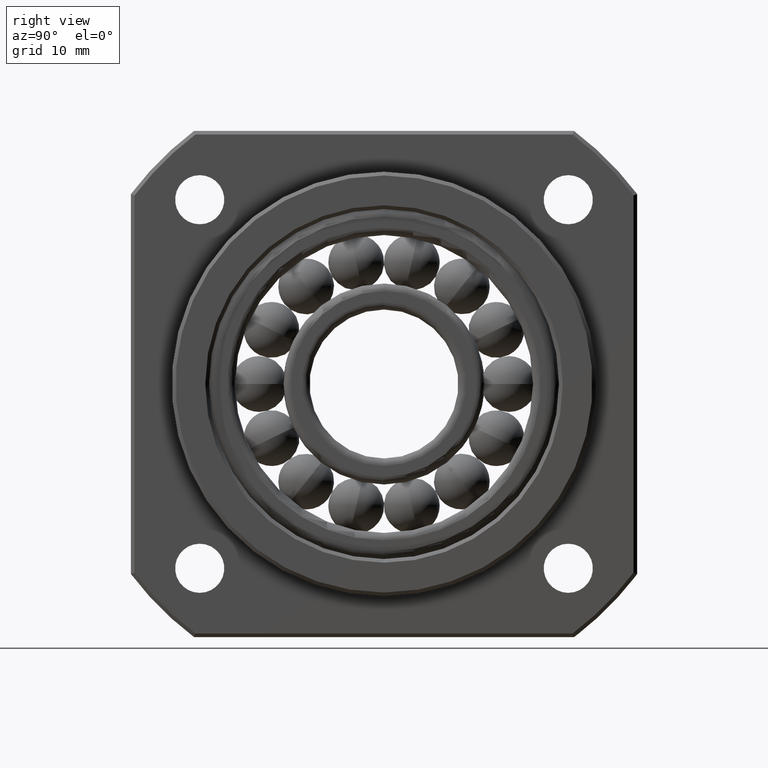
[diagram: clean part render]
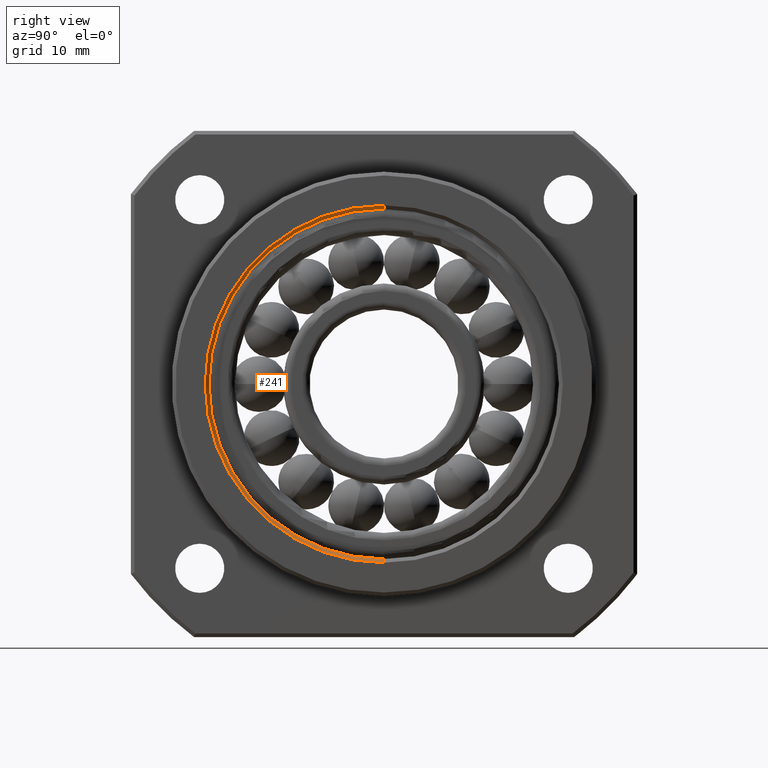
[diagram: same view with one face highlighted and labeled with its STEP entity id]
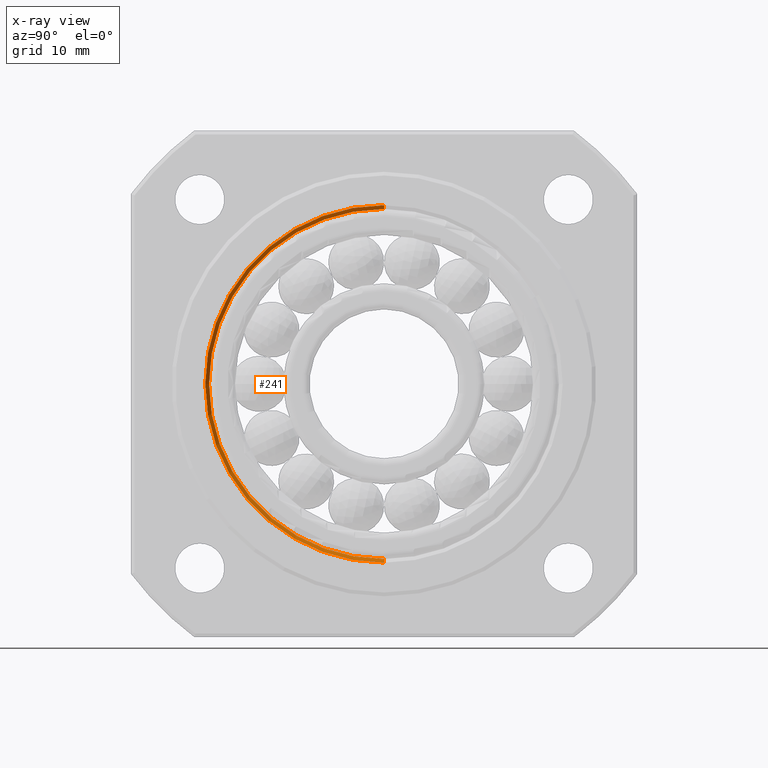
[diagram: x-ray of the same camera — body ghosted, the highlighted face saturated]
A machine part, right view. The second image highlights one B-rep face of the part: STEP entity #241.
The next image is the same camera in x-ray: the body ghosted, the highlighted face saturated — about 0% of this face is hidden behind the body in this view.
In plain terms, the highlighted conical surface has half-angle 45 deg.
Its self-contained STEP definition (entity closure, byte-faithful):
#240 = EDGE_LOOP ( 'NONE', ( #242, #246, #249, #252 ) ) ;
#241 = ADVANCED_FACE ( 'NONE', ( #2335 ), #2334, .F. ) ;
#242 = ORIENTED_EDGE ( 'NONE', *, *, #243, .F. ) ;
#243 = EDGE_CURVE ( 'NONE', #244, #245, #2391, .T. ) ;
#244 = VERTEX_POINT ( 'NONE', #2386 ) ;
#245 = VERTEX_POINT ( 'NONE', #2385 ) ;
#246 = ORIENTED_EDGE ( 'NONE', *, *, #247, .T. ) ;
#247 = EDGE_CURVE ( 'NONE', #244, #248, #2384, .T. ) ;
#248 = VERTEX_POINT ( 'NONE', #2380 ) ;
#249 = ORIENTED_EDGE ( 'NONE', *, *, #250, .F. ) ;
#250 = EDGE_CURVE ( 'NONE', #251, #248, #2379, .T. ) ;
#251 = VERTEX_POINT ( 'NONE', #2374 ) ;
#252 = ORIENTED_EDGE ( 'NONE', *, *, #260, .F. ) ;
#260 = EDGE_CURVE ( 'NONE', #245, #251, #2419, .T. ) ;
#2334 = CONICAL_SURFACE ( 'NONE', #2395, 24.00000000000001800, 0.7853981633974518300 ) ;
#2335 = FACE_OUTER_BOUND ( 'NONE', #240, .T. ) ;
#2374 = CARTESIAN_POINT ( 'NONE',  ( 20.00000000000000400, 0.0000000000000000000, -24.00000000000001800 ) ) ;
#2375 = DIRECTION ( 'NONE',  ( 0.0000000000000000000, 0.0000000000000000000, 1.000000000000000000 ) ) ;
#2376 = DIRECTION ( 'NONE',  ( -1.000000000000000000, -0.0000000000000000000, -0.0000000000000000000 ) ) ;
#2377 = CARTESIAN_POINT ( 'NONE',  ( 20.00000000000000400, 0.0000000000000000000, 0.0000000000000000000 ) ) ;
#2378 = AXIS2_PLACEMENT_3D ( 'NONE', #2377, #2376, #2375 ) ;
#2379 = CIRCLE ( 'NONE', #2378, 24.00000000000001800 ) ;
#2380 = CARTESIAN_POINT ( 'NONE',  ( 20.00000000000000400, 2.939055249173707800E-015, 24.00000000000001800 ) ) ;
#2381 = DIRECTION ( 'NONE',  ( 0.7071067811865450200, 8.659274570719386200E-017, 0.7071067811865500200 ) ) ;
#2382 = VECTOR ( 'NONE', #2381, 1000.000000000000200 ) ;
#2383 = CARTESIAN_POINT ( 'NONE',  ( 20.00000000000000400, 2.939055249173707800E-015, 24.00000000000001800 ) ) ;
#2384 = LINE ( 'NONE', #2383, #2382 ) ;
#2385 = CARTESIAN_POINT ( 'NONE',  ( 19.49999999999998900, 2.877824931482586600E-015, -23.50000000000000000 ) ) ;
#2386 = CARTESIAN_POINT ( 'NONE',  ( 19.49999999999998900, 0.0000000000000000000, 23.50000000000000000 ) ) ;
#2387 = DIRECTION ( 'NONE',  ( 0.0000000000000000000, 0.0000000000000000000, 1.000000000000000000 ) ) ;
#2388 = DIRECTION ( 'NONE',  ( 1.000000000000000000, -0.0000000000000000000, -0.0000000000000000000 ) ) ;
#2389 = CARTESIAN_POINT ( 'NONE',  ( 19.49999999999998900, 0.0000000000000000000, 0.0000000000000000000 ) ) ;
#2390 = AXIS2_PLACEMENT_3D ( 'NONE', #2389, #2388, #2387 ) ;
#2391 = CIRCLE ( 'NONE', #2390, 23.50000000000000000 ) ;
#2392 = DIRECTION ( 'NONE',  ( 0.0000000000000000000, 0.0000000000000000000, -1.000000000000000000 ) ) ;
#2393 = DIRECTION ( 'NONE',  ( 1.000000000000000000, -0.0000000000000000000, -0.0000000000000000000 ) ) ;
#2394 = CARTESIAN_POINT ( 'NONE',  ( 20.00000000000000400, 0.0000000000000000000, 0.0000000000000000000 ) ) ;
#2395 = AXIS2_PLACEMENT_3D ( 'NONE', #2394, #2393, #2392 ) ;
#2416 = DIRECTION ( 'NONE',  ( 0.7071067811865450200, 0.0000000000000000000, -0.7071067811865500200 ) ) ;
#2417 = VECTOR ( 'NONE', #2416, 1000.000000000000200 ) ;
#2418 = CARTESIAN_POINT ( 'NONE',  ( 20.00000000000000400, 0.0000000000000000000, -24.00000000000001800 ) ) ;
#2419 = LINE ( 'NONE', #2418, #2417 ) ;